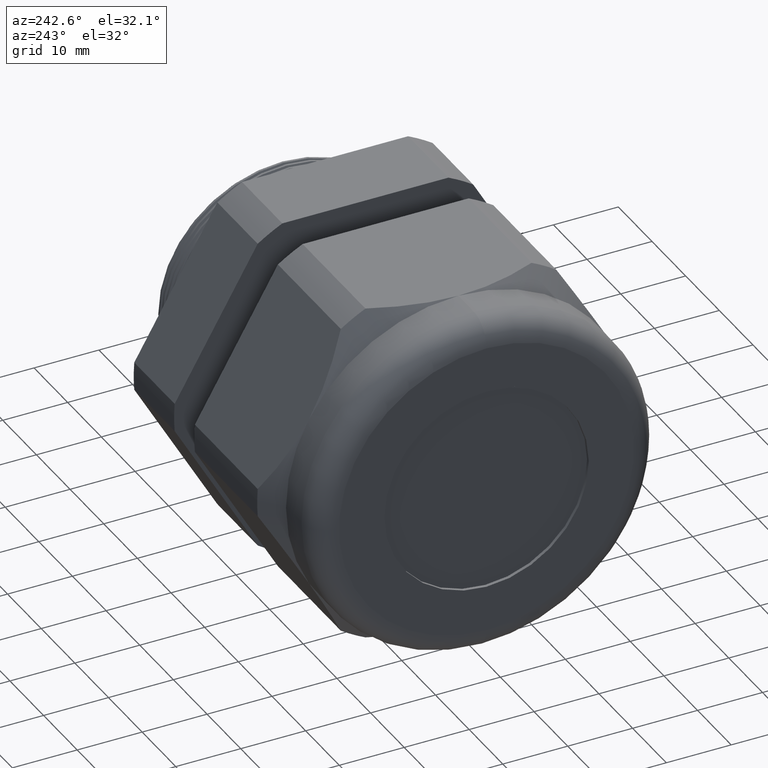
[diagram: clean part render]
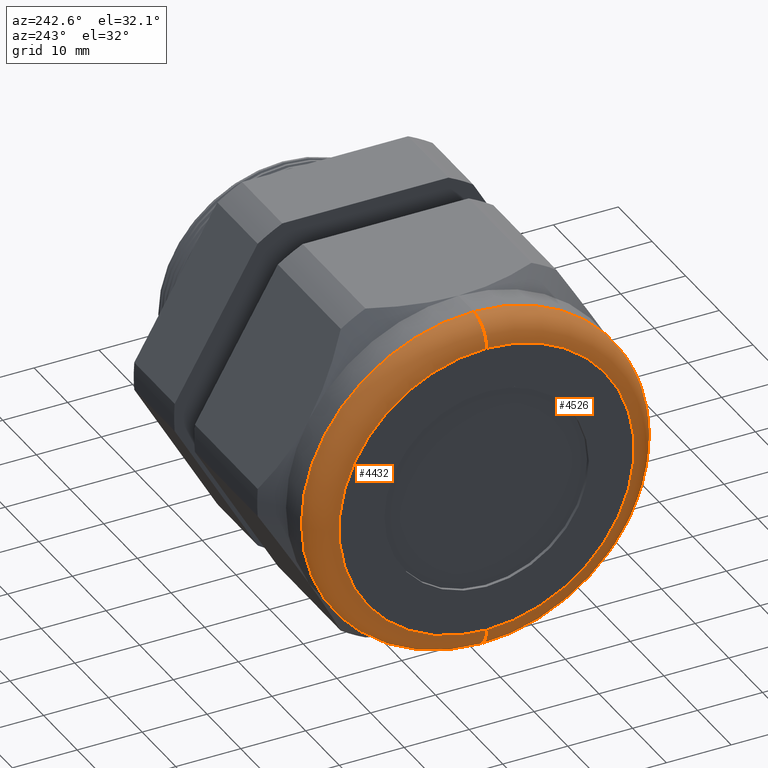
[diagram: same view with one multi-face feature highlighted, each face labeled with its STEP entity id]
A machine part, auxiliary view. The highlighted faces form ONE feature: a constant-radius fillet chain: 2 tangent blend faces with common blend radius 3.81 mm. The faces share edges in the B-rep.
Their STEP definitions:
[1] entity #4526 (Torus):
#1555 = DIRECTION ( 'NONE',  ( 0.0000000000000000000, 0.0000000000000000000, 1.000000000000000000 ) ) ;
#1556 = DIRECTION ( 'NONE',  ( 1.000000000000000000, 0.0000000000000000000, 0.0000000000000000000 ) ) ;
#1557 = CARTESIAN_POINT ( 'NONE',  ( -2.049999999999999800, 0.0000000000000000000, 0.0000000000000000000 ) ) ;
#1558 = AXIS2_PLACEMENT_3D ( 'NONE', #1557, #1556, #1555 ) ;
#1559 = CIRCLE ( 'NONE', #1558, 1.044999999999999900 ) ;
#1631 = DIRECTION ( 'NONE',  ( 0.0000000000000000000, 0.0000000000000000000, 1.000000000000000000 ) ) ;
#1632 = DIRECTION ( 'NONE',  ( -1.000000000000000000, 0.0000000000000000000, 0.0000000000000000000 ) ) ;
#1633 = AXIS2_PLACEMENT_3D ( 'NONE', #1639, #1632, #1631 ) ;
#1634 = CIRCLE ( 'NONE', #1633, 0.8949999999999999100 ) ;
#1639 = CARTESIAN_POINT ( 'NONE',  ( -2.200000000000000200, 0.0000000000000000000, 0.0000000000000000000 ) ) ;
#2238 = DIRECTION ( 'NONE',  ( 0.0000000000000000000, 0.0000000000000000000, -1.000000000000000000 ) ) ;
#2239 = DIRECTION ( 'NONE',  ( 0.0000000000000000000, -1.000000000000000000, 0.0000000000000000000 ) ) ;
#2240 = AXIS2_PLACEMENT_3D ( 'NONE', #2246, #2239, #2238 ) ;
#2241 = CIRCLE ( 'NONE', #2240, 0.1500000000000000500 ) ;
#2246 = CARTESIAN_POINT ( 'NONE',  ( -2.049999999999999800, 0.0000000000000000000, 0.8949999999999999100 ) ) ;
#2472 = DIRECTION ( 'NONE',  ( 0.0000000000000000000, -1.224646799147352500E-016, 1.000000000000000000 ) ) ;
#2473 = DIRECTION ( 'NONE',  ( 0.0000000000000000000, 1.000000000000000000, 1.224646799147353200E-016 ) ) ;
#2474 = CARTESIAN_POINT ( 'NONE',  ( -2.049999999999999800, 1.096058885236880900E-016, -0.8949999999999999100 ) ) ;
#2475 = AXIS2_PLACEMENT_3D ( 'NONE', #2474, #2473, #2472 ) ;
#2476 = CIRCLE ( 'NONE', #2475, 0.1500000000000000500 ) ;
#2478 = CARTESIAN_POINT ( 'NONE',  ( -2.200000000000000200, 1.187907395172932400E-016, -0.8949999999999999100 ) ) ;
#2479 = CARTESIAN_POINT ( 'NONE',  ( -2.200000000000000200, 0.0000000000000000000, 0.8949999999999999100 ) ) ;
#2485 = CARTESIAN_POINT ( 'NONE',  ( -2.049999999999999800, 1.279755905108984100E-016, 1.044999999999999900 ) ) ;
#2499 = CARTESIAN_POINT ( 'NONE',  ( -2.049999999999999800, 0.0000000000000000000, -1.044999999999999900 ) ) ;
#2760 = DIRECTION ( 'NONE',  ( 0.0000000000000000000, 0.0000000000000000000, 1.000000000000000000 ) ) ;
#2761 = DIRECTION ( 'NONE',  ( -1.000000000000000000, 0.0000000000000000000, 0.0000000000000000000 ) ) ;
#2762 = AXIS2_PLACEMENT_3D ( 'NONE', #2764, #2761, #2760 ) ;
#2763 = TOROIDAL_SURFACE ( 'NONE', #2762, 0.8949999999999999100, 0.1499999999999999900 ) ;
#2764 = CARTESIAN_POINT ( 'NONE',  ( -2.049999999999999800, 0.0000000000000000000, 0.0000000000000000000 ) ) ;
#2765 = FACE_OUTER_BOUND ( 'NONE', #4532, .T. ) ;
#3860 = EDGE_CURVE ( 'NONE', #4368, #4390, #1559, .T. ) ;
#3883 = EDGE_CURVE ( 'NONE', #4374, #4371, #1634, .T. ) ;
#4219 = EDGE_CURVE ( 'NONE', #4368, #4371, #2241, .T. ) ;
#4368 = VERTEX_POINT ( 'NONE', #2485 ) ;
#4371 = VERTEX_POINT ( 'NONE', #2479 ) ;
#4374 = VERTEX_POINT ( 'NONE', #2478 ) ;
#4375 = EDGE_CURVE ( 'NONE', #4390, #4374, #2476, .T. ) ;
#4390 = VERTEX_POINT ( 'NONE', #2499 ) ;
#4526 = ADVANCED_FACE ( 'NONE', ( #2765 ), #2763, .T. ) ;
#4532 = EDGE_LOOP ( 'NONE', ( #4544, #4537, #4543, #4541 ) ) ;
#4537 = ORIENTED_EDGE ( 'NONE', *, *, #3860, .F. ) ;
#4541 = ORIENTED_EDGE ( 'NONE', *, *, #3883, .F. ) ;
#4543 = ORIENTED_EDGE ( 'NONE', *, *, #4219, .T. ) ;
#4544 = ORIENTED_EDGE ( 'NONE', *, *, #4375, .F. ) ;
[2] entity #4432 (Torus):
#2238 = DIRECTION ( 'NONE',  ( 0.0000000000000000000, 0.0000000000000000000, -1.000000000000000000 ) ) ;
#2239 = DIRECTION ( 'NONE',  ( 0.0000000000000000000, -1.000000000000000000, 0.0000000000000000000 ) ) ;
#2240 = AXIS2_PLACEMENT_3D ( 'NONE', #2246, #2239, #2238 ) ;
#2241 = CIRCLE ( 'NONE', #2240, 0.1500000000000000500 ) ;
#2246 = CARTESIAN_POINT ( 'NONE',  ( -2.049999999999999800, 0.0000000000000000000, 0.8949999999999999100 ) ) ;
#2467 = DIRECTION ( 'NONE',  ( 0.0000000000000000000, 0.0000000000000000000, 1.000000000000000000 ) ) ;
#2468 = DIRECTION ( 'NONE',  ( -1.000000000000000000, 0.0000000000000000000, 0.0000000000000000000 ) ) ;
#2469 = AXIS2_PLACEMENT_3D ( 'NONE', #2477, #2468, #2467 ) ;
#2470 = CIRCLE ( 'NONE', #2469, 0.8949999999999999100 ) ;
#2472 = DIRECTION ( 'NONE',  ( 0.0000000000000000000, -1.224646799147352500E-016, 1.000000000000000000 ) ) ;
#2473 = DIRECTION ( 'NONE',  ( 0.0000000000000000000, 1.000000000000000000, 1.224646799147353200E-016 ) ) ;
#2474 = CARTESIAN_POINT ( 'NONE',  ( -2.049999999999999800, 1.096058885236880900E-016, -0.8949999999999999100 ) ) ;
#2475 = AXIS2_PLACEMENT_3D ( 'NONE', #2474, #2473, #2472 ) ;
#2476 = CIRCLE ( 'NONE', #2475, 0.1500000000000000500 ) ;
#2477 = CARTESIAN_POINT ( 'NONE',  ( -2.200000000000000200, 0.0000000000000000000, 0.0000000000000000000 ) ) ;
#2478 = CARTESIAN_POINT ( 'NONE',  ( -2.200000000000000200, 1.187907395172932400E-016, -0.8949999999999999100 ) ) ;
#2479 = CARTESIAN_POINT ( 'NONE',  ( -2.200000000000000200, 0.0000000000000000000, 0.8949999999999999100 ) ) ;
#2485 = CARTESIAN_POINT ( 'NONE',  ( -2.049999999999999800, 1.279755905108984100E-016, 1.044999999999999900 ) ) ;
#2499 = CARTESIAN_POINT ( 'NONE',  ( -2.049999999999999800, 0.0000000000000000000, -1.044999999999999900 ) ) ;
#2500 = DIRECTION ( 'NONE',  ( 0.0000000000000000000, 0.0000000000000000000, 1.000000000000000000 ) ) ;
#2501 = DIRECTION ( 'NONE',  ( 1.000000000000000000, 0.0000000000000000000, 0.0000000000000000000 ) ) ;
#2502 = CARTESIAN_POINT ( 'NONE',  ( -2.049999999999999800, 0.0000000000000000000, 0.0000000000000000000 ) ) ;
#2503 = AXIS2_PLACEMENT_3D ( 'NONE', #2502, #2501, #2500 ) ;
#2504 = CIRCLE ( 'NONE', #2503, 1.044999999999999900 ) ;
#2607 = DIRECTION ( 'NONE',  ( 0.0000000000000000000, 0.0000000000000000000, 1.000000000000000000 ) ) ;
#2608 = DIRECTION ( 'NONE',  ( -1.000000000000000000, 0.0000000000000000000, 0.0000000000000000000 ) ) ;
#2609 = CARTESIAN_POINT ( 'NONE',  ( -2.049999999999999800, 0.0000000000000000000, 0.0000000000000000000 ) ) ;
#2610 = AXIS2_PLACEMENT_3D ( 'NONE', #2609, #2608, #2607 ) ;
#2612 = TOROIDAL_SURFACE ( 'NONE', #2610, 0.8949999999999999100, 0.1499999999999999900 ) ;
#2613 = FACE_OUTER_BOUND ( 'NONE', #4407, .T. ) ;
#4217 = ORIENTED_EDGE ( 'NONE', *, *, #4219, .F. ) ;
#4219 = EDGE_CURVE ( 'NONE', #4368, #4371, #2241, .T. ) ;
#4368 = VERTEX_POINT ( 'NONE', #2485 ) ;
#4371 = VERTEX_POINT ( 'NONE', #2479 ) ;
#4373 = ORIENTED_EDGE ( 'NONE', *, *, #4378, .F. ) ;
#4374 = VERTEX_POINT ( 'NONE', #2478 ) ;
#4375 = EDGE_CURVE ( 'NONE', #4390, #4374, #2476, .T. ) ;
#4377 = ORIENTED_EDGE ( 'NONE', *, *, #4375, .T. ) ;
#4378 = EDGE_CURVE ( 'NONE', #4371, #4374, #2470, .T. ) ;
#4389 = EDGE_CURVE ( 'NONE', #4390, #4368, #2504, .T. ) ;
#4390 = VERTEX_POINT ( 'NONE', #2499 ) ;
#4398 = ORIENTED_EDGE ( 'NONE', *, *, #4389, .F. ) ;
#4407 = EDGE_LOOP ( 'NONE', ( #4398, #4377, #4373, #4217 ) ) ;
#4432 = ADVANCED_FACE ( 'NONE', ( #2613 ), #2612, .T. ) ;